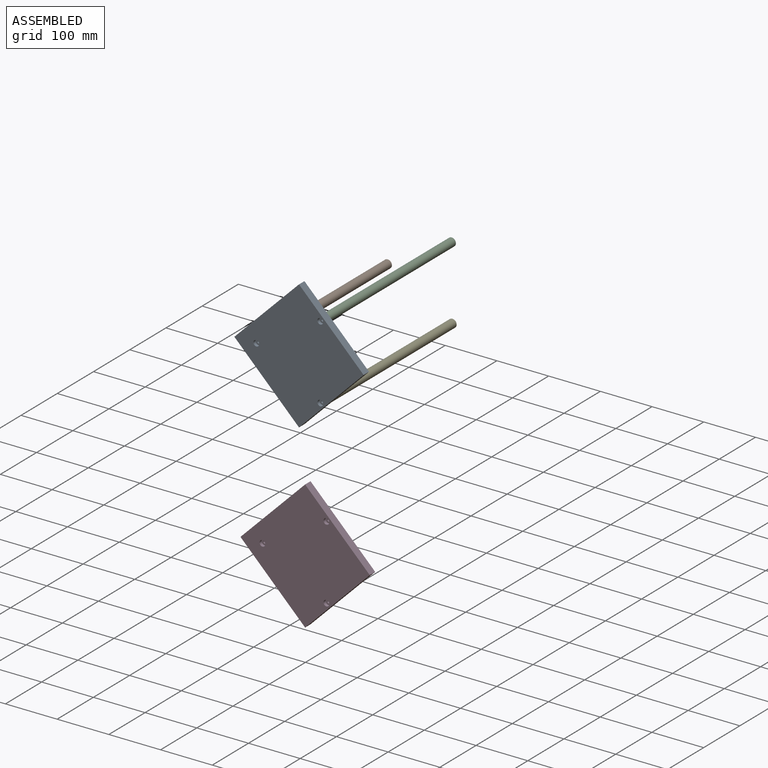
[diagram: assembled view]
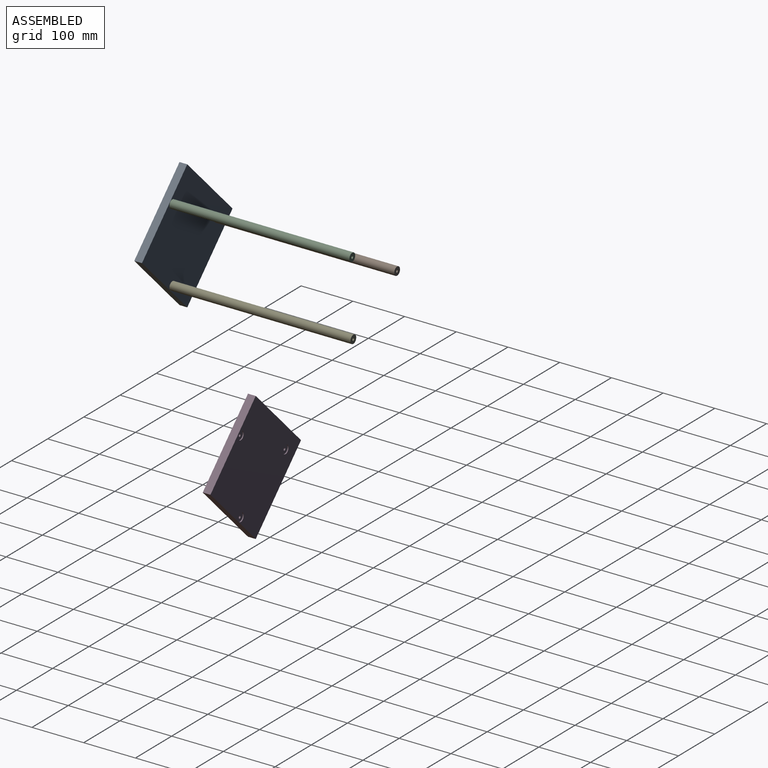
[diagram: assembled view, second angle]
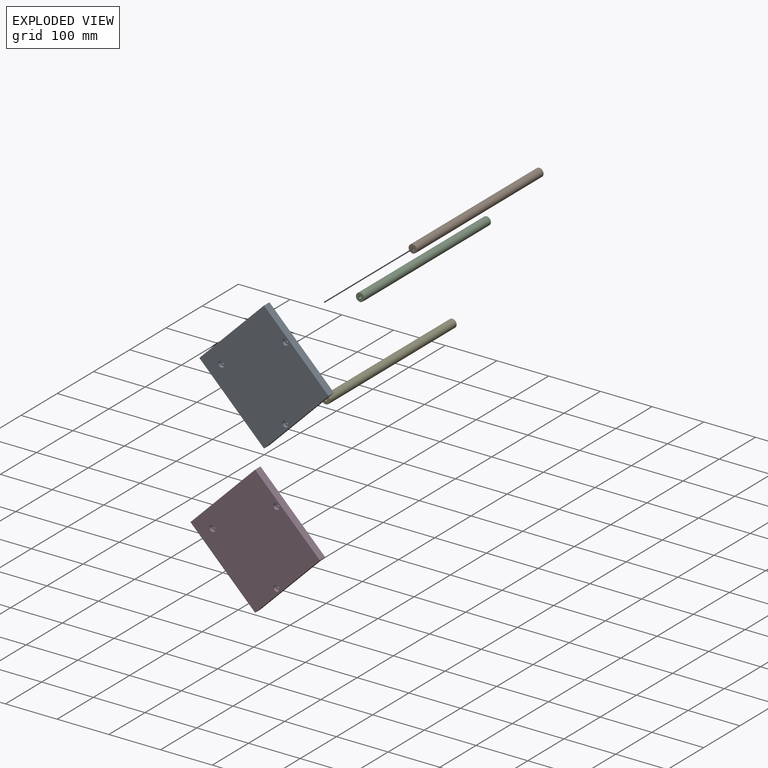
[diagram: exploded view]
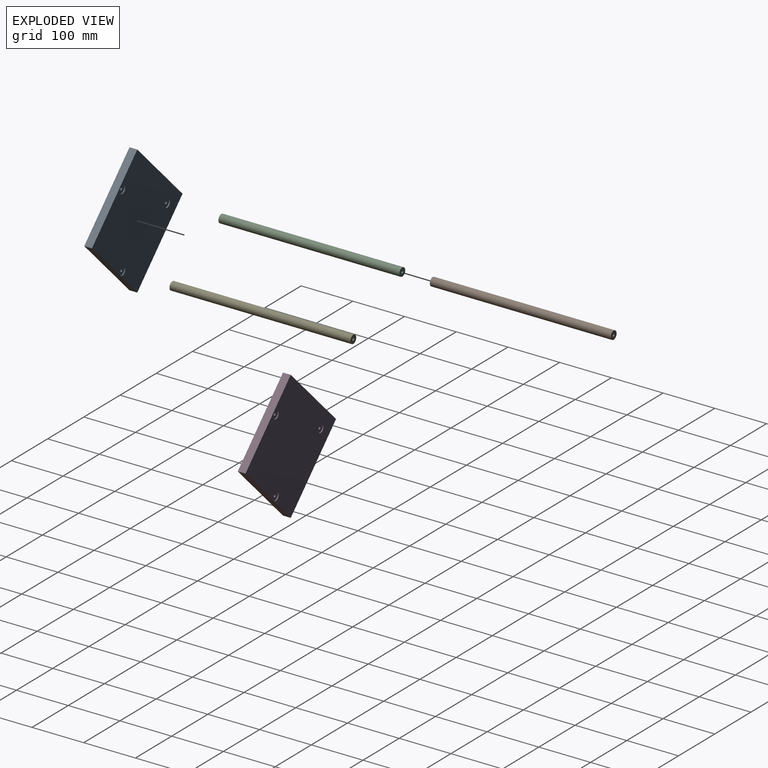
[diagram: exploded view, second angle]
ASSEMBLY  parts=5 mates=3
PART A: 21 faces, bbox 250x15x250 mm
  f0: cylinder r=2.5mm len=7mm, axis (0,-1,0), area 110mm2, adj f9,f20
  f1: cylinder r=2.5mm len=7mm, axis (0,-1,0), area 110mm2, adj f11,f18
  f2: cylinder r=2.5mm len=7mm, axis (0,-1,0), area 110mm2, adj f13,f16
  f3: plane 125x125mm, normal (0.71,0,-0.71), area 2651.7mm2, adj f4,f6,f7,f8
  f4: plane 125x125mm, normal (0.71,0,0.71), area 2651.7mm2, adj f3,f5,f7,f8
  f5: plane 125x125mm, normal (-0.71,0,0.71), area 2651.7mm2, adj f4,f6,f7,f8
  f6: plane 125x125mm, normal (-0.71,0,-0.71), area 2651.7mm2, adj f3,f5,f7,f8
  f7: plane 250x250mm, normal (0,-1,0), area 30951.8mm2, adj f3,f4,f5,f6,f10,f12,f14
  f8: plane 250x250mm, normal (0,1,0), area 30639.3mm2, adj f3,f4,f5,f6,f15,f17,f19
  f9: plane 11.25x11.25mm, normal (0,-1,0), area 79.8mm2, adj f0,f10
  f10: cylinder r=5.62mm len=11.25mm, axis (0,-1,0), area 212.1mm2, adj f7,f9
  f11: plane 11.25x11.25mm, normal (0,-1,0), area 79.8mm2, adj f1,f12
  f12: cylinder r=5.62mm len=11.25mm, axis (0,-1,0), area 212.1mm2, adj f7,f11
  f13: plane 11.25x11.25mm, normal (0,-1,0), area 79.8mm2, adj f2,f14
  f14: cylinder r=5.62mm len=11.25mm, axis (0,-1,0), area 212.1mm2, adj f7,f13
  f15: cylinder r=8.05mm len=16.1mm, axis (0,1,0), area 101.2mm2, adj f8,f16
  f16: plane 16.1x16.1mm, normal (0,1,0), area 183.9mm2, adj f2,f15
  f17: cylinder r=8.05mm len=16.1mm, axis (0,1,0), area 101.2mm2, adj f8,f18
  f18: plane 16.1x16.1mm, normal (0,1,0), area 183.9mm2, adj f1,f17
  f19: cylinder r=8.05mm len=16.1mm, axis (0,1,0), area 101.2mm2, adj f8,f20
  f20: plane 16.1x16.1mm, normal (0,1,0), area 183.9mm2, adj f0,f19
PART B: 7 faces, bbox 16x350x16 mm
  f0: cylinder r=8mm len=350mm, axis (0,1,0), area 17592.9mm2, adj f1,f2
  f1: plane 16x16mm, normal (0,-1,0), area 181.4mm2, adj f0,f5
  f2: plane 16x16mm, normal (0,1,0), area 181.4mm2, adj f0,f3
  f3: cylinder r=2.5mm len=16mm, axis (0,1,0), area 251.3mm2, adj f2,f4
  f4: cone r=0mm half-angle=59deg, axis (0,1,0), area 22.9mm2, adj f3
  f5: cylinder r=2.5mm len=16mm, axis (0,-1,0), area 251.3mm2, adj f1,f6
  f6: cone r=0mm half-angle=59deg, axis (0,-1,0), area 22.9mm2, adj f5
PART C: same geometry as B
PART D: same geometry as A
PART E: same geometry as B
PLACE A t=(-106.04,-94.07,-30.63)mm
PLACE B t=(-188.54,253.93,-30.63)mm
PLACE C t=(-64.79,253.93,40.81)mm
PLACE D t=(-160.32,0.32,-430.94)mm
PLACE E t=(-64.79,255.93,-102.08)mm
MATE fastened B.f0 <-> A.f0  axis (0,-1,0) through (-188.54,-96.07,-30.63)mm
MATE fastened E.f0 <-> A.f1  axis (0,1,0) through (-64.79,-94.07,-102.08)mm
MATE fastened C.f0 <-> A.f2  axis (0,-1,0) through (-64.79,-96.07,40.81)mm
